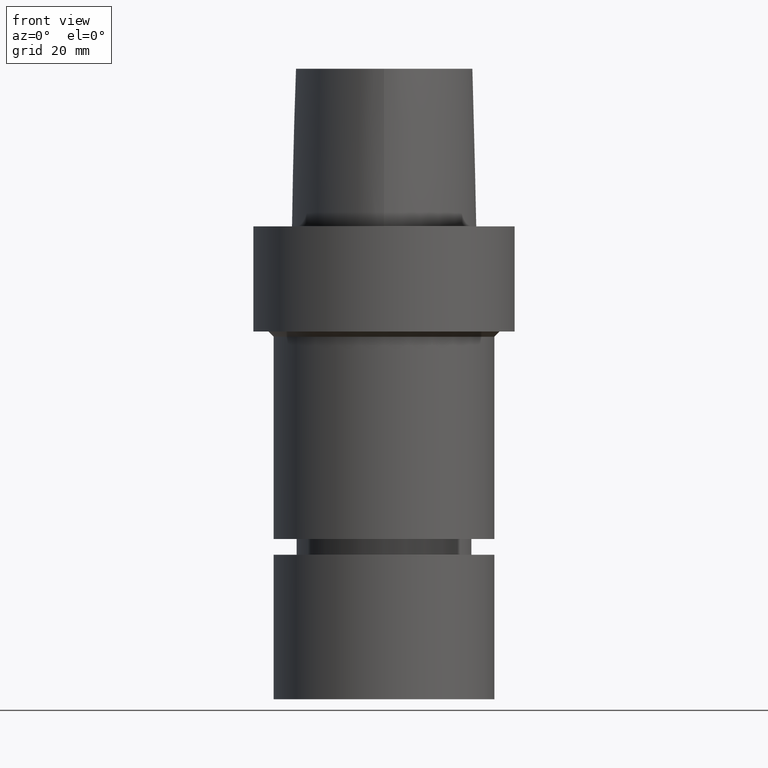
[diagram: clean part render]
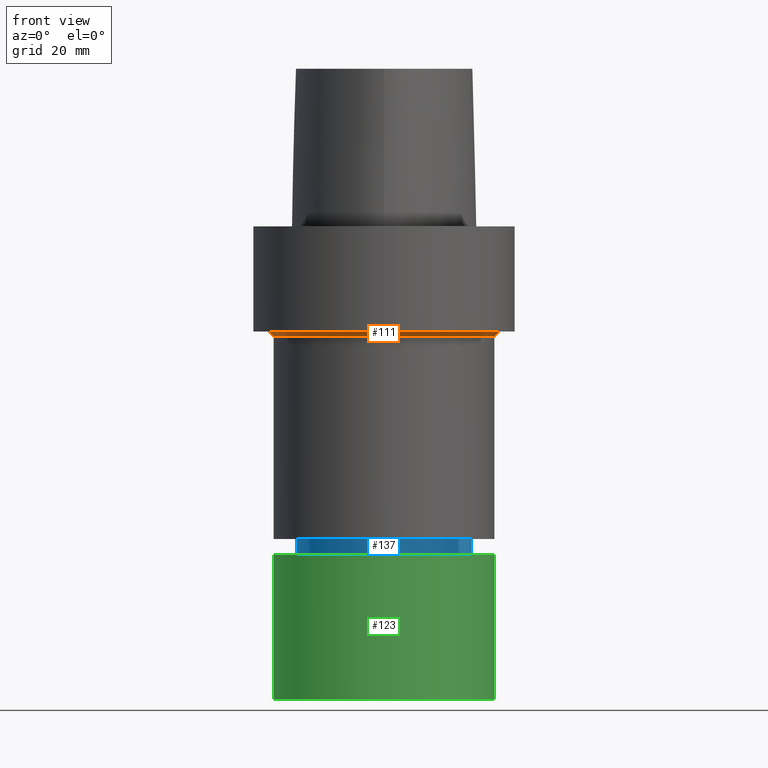
[diagram: same view with three faces highlighted in distinct colors, each labeled with its STEP entity id]
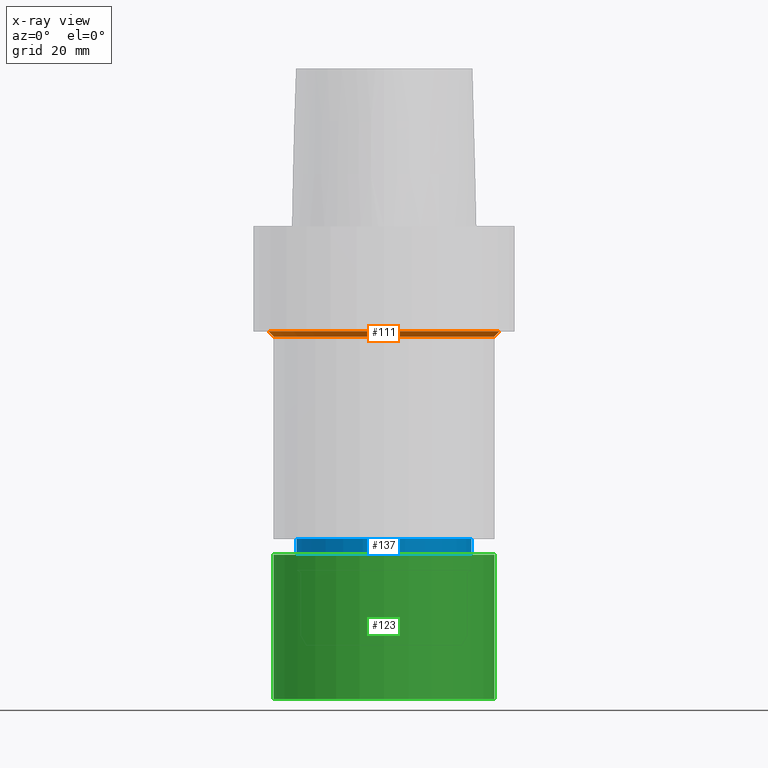
[diagram: x-ray of the same camera — body ghosted, the three highlighted faces saturated]
A machine part, front view with three faces highlighted in distinct colors.
The next image is the same camera in x-ray (body ghosted, the three faces saturated) — at least one of them is partly hidden behind the body in this view.
Their STEP definitions:

[orange] entity #111 — the highlighted conical surface has half-angle 45 deg.
#111=ADVANCED_FACE('Unnamed[1]',(#236,#237),#238,.T.);
#141=EDGE_CURVE('Unnamed[1]',#281,#281,#282,.T.);
#146=EDGE_CURVE('Unnamed[1]',#288,#288,#289,.T.);
#236=FACE_BOUND('',#487,.T.);
#237=FACE_BOUND('',#488,.T.);
#238=CONICAL_SURFACE('',#489,21.5000000000003,0.785398163397448);
#281=VERTEX_POINT('',#974);
#282=CIRCLE('',#975,21.0000000000003);
#288=VERTEX_POINT('',#983);
#289=CIRCLE('',#984,22.0000000000003);
#487=EDGE_LOOP('',(#1058));
#488=EDGE_LOOP('',(#1059));
#489=AXIS2_PLACEMENT_3D('',#1060,#1061,#1062);
#974=CARTESIAN_POINT('',(1.28587913910472E-015,21.0000000000003,-21.0));
#975=AXIS2_PLACEMENT_3D('',#1105,#1106,#1107);
#983=CARTESIAN_POINT('',(1.22464679914735E-015,22.0000000000003,-20.0));
#984=AXIS2_PLACEMENT_3D('',#1113,#1114,#1115);
#1058=ORIENTED_EDGE('',*,*,#141,.F.);
#1059=ORIENTED_EDGE('',*,*,#146,.T.);
#1060=CARTESIAN_POINT('',(1.25526296912604E-015,2.51052593825207E-015,-20.5));
#1061=DIRECTION('',(-6.12323399573677E-017,-1.22464679914735E-016,1.0));
#1062=DIRECTION('',(-1.23259516440783E-032,1.0,1.22464679914735E-016));
#1105=CARTESIAN_POINT('',(1.28587913910472E-015,2.57175827820944E-015,-21.0));
#1106=DIRECTION('',(6.12323399573677E-017,1.22464679914735E-016,-1.0));
#1107=DIRECTION('',(-1.23259516440783E-032,1.0,1.22464679914735E-016));
#1113=CARTESIAN_POINT('',(1.22464679914735E-015,2.44929359829471E-015,-20.0));
#1114=DIRECTION('',(6.12323399573677E-017,1.22464679914735E-016,-1.0));
#1115=DIRECTION('',(-1.23259516440783E-032,1.0,1.22464679914735E-016));

[blue] entity #137 — the highlighted cylindrical surface (bore or boss wall) has radius 16.75 mm, axis along (0, 0, -1).
#108=EDGE_CURVE('Unnamed[1]',#232,#232,#233,.T.);
#125=EDGE_CURVE('Unnamed[1]',#257,#257,#258,.T.);
#137=ADVANCED_FACE('Unnamed[1]',(#274,#275),#276,.T.);
#232=VERTEX_POINT('',#482);
#233=CIRCLE('',#483,16.7500000000017);
#257=VERTEX_POINT('',#895);
#258=CIRCLE('',#896,16.7499999999907);
#274=FACE_BOUND('',#965,.T.);
#275=FACE_BOUND('',#966,.T.);
#276=CYLINDRICAL_SURFACE('',#967,16.7499999999962);
#482=CARTESIAN_POINT('',(4.00871749225766E-015,16.7500000000017,-65.4673248654009));
#483=AXIS2_PLACEMENT_3D('',#1054,#1055,#1056);
#895=CARTESIAN_POINT('',(3.64332422746333E-015,16.7499999999907,-59.4999999999992));
#896=AXIS2_PLACEMENT_3D('',#1081,#1082,#1083);
#965=EDGE_LOOP('',(#1097));
#966=EDGE_LOOP('',(#1098));
#967=AXIS2_PLACEMENT_3D('',#1099,#1100,#1101);
#1054=CARTESIAN_POINT('',(4.00871749225766E-015,8.01743498451531E-015,-65.4673248654009));
#1055=DIRECTION('',(6.12323399573677E-017,1.22464679914735E-016,-1.0));
#1056=DIRECTION('',(-1.23259516440783E-032,1.0,1.22464679914735E-016));
#1081=CARTESIAN_POINT('',(3.64332422746333E-015,7.28664845492665E-015,-59.4999999999992));
#1082=DIRECTION('',(6.12323399573677E-017,1.22464679914735E-016,-1.0));
#1083=DIRECTION('',(-1.23259516440783E-032,1.0,1.22464679914735E-016));
#1097=ORIENTED_EDGE('',*,*,#108,.F.);
#1098=ORIENTED_EDGE('',*,*,#125,.T.);
#1099=CARTESIAN_POINT('',(3.82602085986049E-015,7.65204171972099E-015,-62.4836624327001));
#1100=DIRECTION('',(6.12323399573676E-017,1.22464679914735E-016,-1.0));
#1101=DIRECTION('',(-1.23259516440783E-032,1.0,1.22464679914735E-016));

[green] entity #123 — the highlighted cylindrical surface (bore or boss wall) has radius 21 mm, axis along (0, 0, -1).
#79=EDGE_CURVE('Unnamed[1]',#189,#189,#190,.T.);
#84=EDGE_CURVE('Unnamed[1]',#197,#197,#198,.T.);
#123=ADVANCED_FACE('Unnamed[1]',(#253,#254),#255,.T.);
#189=VERTEX_POINT('',#334);
#190=CIRCLE('',#335,21.0);
#197=VERTEX_POINT('',#344);
#198=CIRCLE('',#345,21.0);
#253=FACE_BOUND('',#890,.T.);
#254=FACE_BOUND('',#891,.T.);
#255=CYLINDRICAL_SURFACE('',#892,21.0);
#334=CARTESIAN_POINT('',(3.82702124733548E-015,21.0,-62.5));
#335=AXIS2_PLACEMENT_3D('',#1009,#1010,#1011);
#344=CARTESIAN_POINT('',(5.51091059616309E-015,21.0,-90.0));
#345=AXIS2_PLACEMENT_3D('',#1018,#1019,#1020);
#890=EDGE_LOOP('',(#1076));
#891=EDGE_LOOP('',(#1077));
#892=AXIS2_PLACEMENT_3D('',#1078,#1079,#1080);
#1009=CARTESIAN_POINT('',(3.82702124733548E-015,7.65404249467096E-015,-62.5));
#1010=DIRECTION('',(6.12323399573677E-017,1.22464679914735E-016,-1.0));
#1011=DIRECTION('',(-1.23259516440783E-032,1.0,1.22464679914735E-016));
#1018=CARTESIAN_POINT('',(5.51091059616309E-015,1.10218211923262E-014,-90.0));
#1019=DIRECTION('',(6.12323399573677E-017,1.22464679914735E-016,-1.0));
#1020=DIRECTION('',(-1.23259516440783E-032,1.0,1.22464679914735E-016));
#1076=ORIENTED_EDGE('',*,*,#84,.F.);
#1077=ORIENTED_EDGE('',*,*,#79,.T.);
#1078=CARTESIAN_POINT('',(4.66896592174928E-015,9.33793184349857E-015,-76.25));
#1079=DIRECTION('',(6.12323399573677E-017,1.22464679914735E-016,-1.0));
#1080=DIRECTION('',(-1.23259516440783E-032,1.0,1.22464679914735E-016));